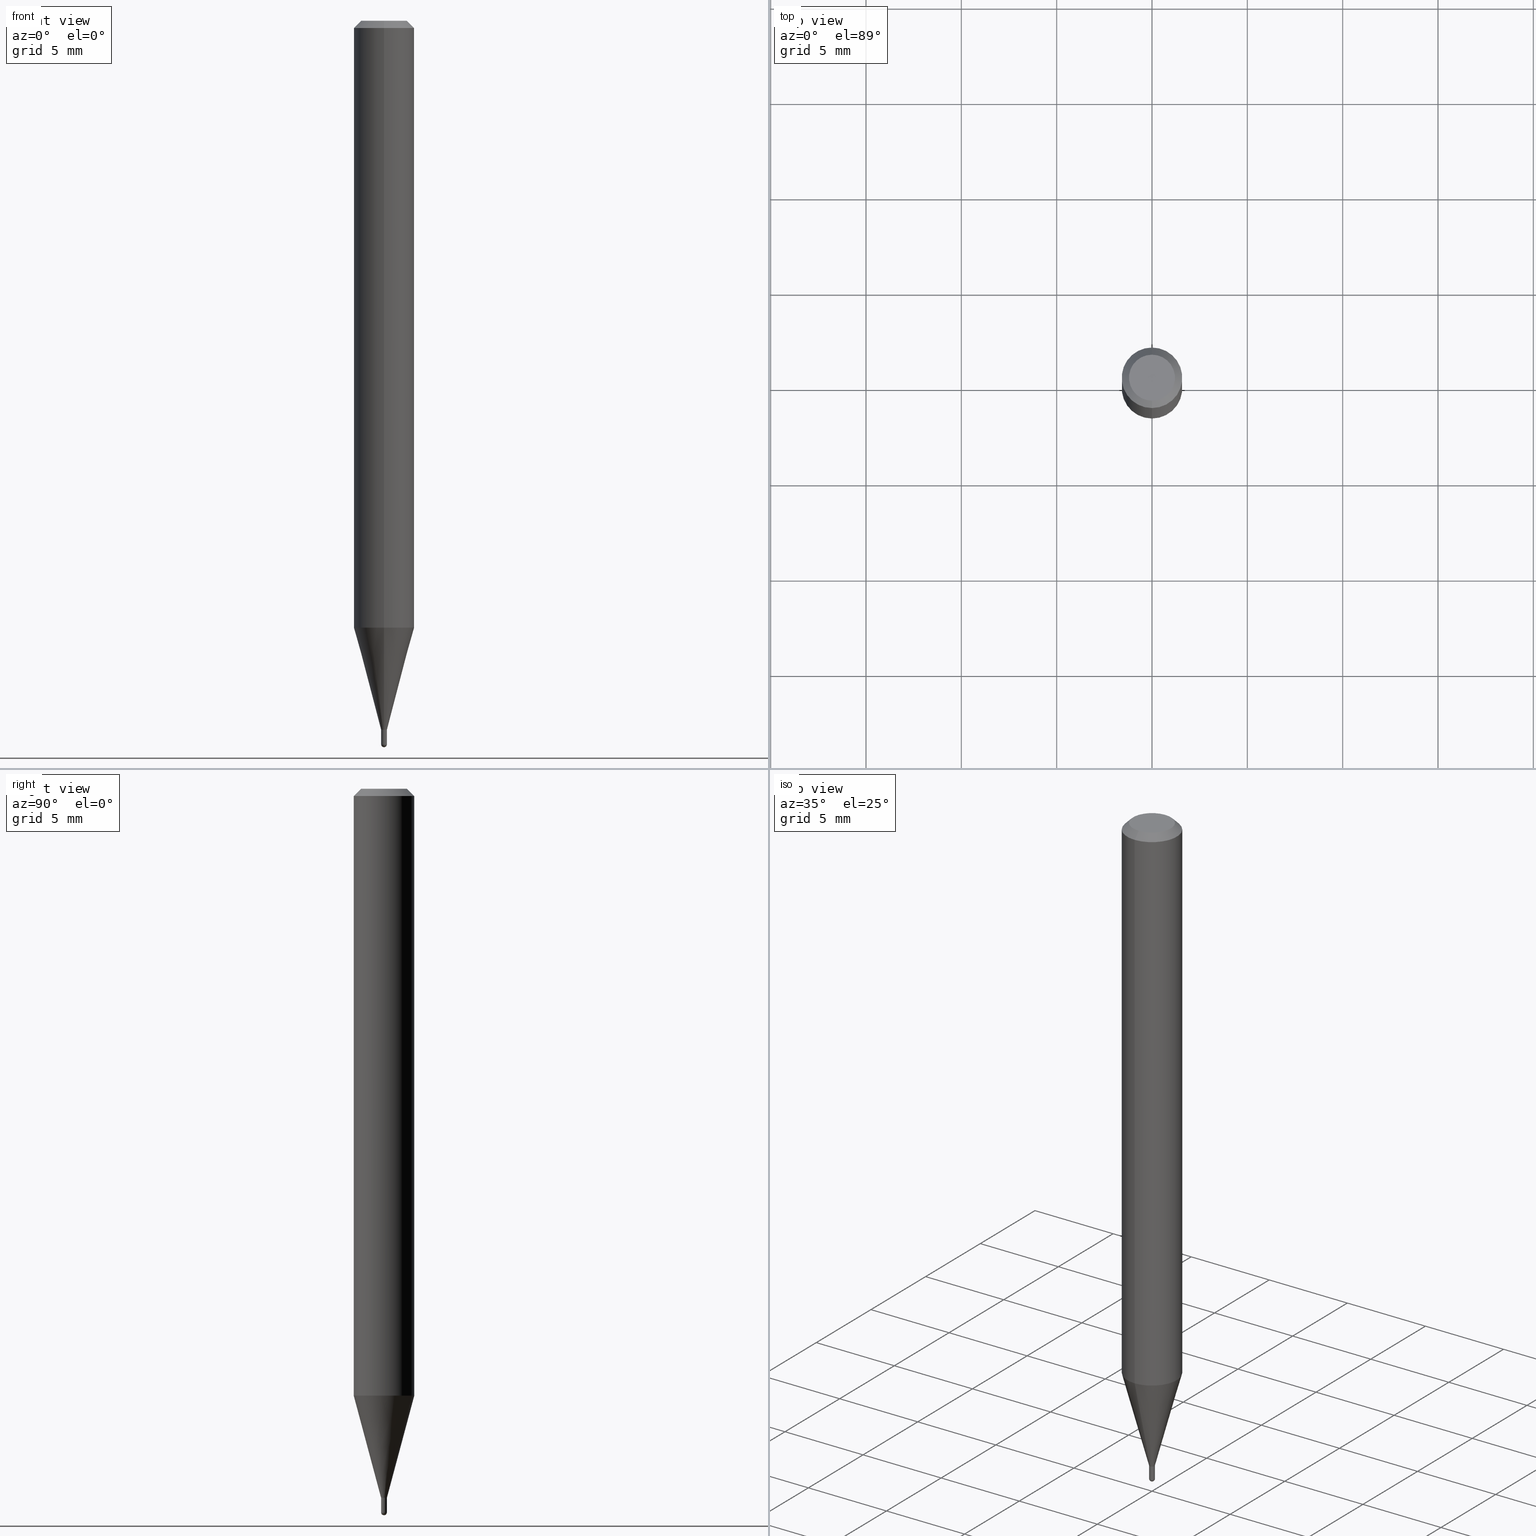
[diagram: canonical four-view strip — front | top / right | iso, engineering-drawing reading convention]
A machine part, canonical four-view strip (front | top / right | iso — engineering-drawing reading convention). The complete STEP part file that produces these views, byte-faithful:
ISO-10303-21;
HEADER;
FILE_DESCRIPTION (( 'STEP AP203' ),
    '1' );
FILE_NAME ('04390.STEP',
    '2024-03-08T19:06:11',
    ( '' ),
    ( '' ),
    'SwSTEP 2.0',
    'SolidWorks 2023',
    '' );
FILE_SCHEMA (( 'CONFIG_CONTROL_DESIGN' ));
ENDSEC;

DATA;
#1 = EDGE_CURVE ( 'NONE', #466, #507, #367, .T. ) ;
#2 = ORIENTED_EDGE ( 'NONE', *, *, #386, .T. ) ;
#3 = DIMENSIONAL_EXPONENTS ( 1.000000000000000000, 0.000000000000000000, 0.000000000000000000, 0.000000000000000000, 0.000000000000000000, 0.000000000000000000, 0.000000000000000000 ) ;
#4 = DIRECTION ( 'NONE',  ( -1.807323732225378654E-15, -0.2588190451025251249, 0.9659258262890670910 ) ) ;
#5 = ORIENTED_EDGE ( 'NONE', *, *, #52, .T. ) ;
#6 = AXIS2_PLACEMENT_3D ( 'NONE', #442, #257, #254 ) ;
#7 = PRODUCT_RELATED_PRODUCT_CATEGORY ( 'detail', '', ( #259 ) ) ;
#8 = LOCAL_TIME ( 14, 6, 11.00000000000000000, #455 ) ;
#9 = FACE_OUTER_BOUND ( 'NONE', #395, .T. ) ;
#10 = ORIENTED_EDGE ( 'NONE', *, *, #324, .F. ) ;
#11 = CARTESIAN_POINT ( 'NONE',  ( 3.668205305526113591E-31, -5.237219006317732571E-17, -0.01500000000000006710 ) ) ;
#12 = ORIENTED_EDGE ( 'NONE', *, *, #186, .T. ) ;
#13 = CARTESIAN_POINT ( 'NONE',  ( 3.653017296667086671E-29, -5.217007908311148520E-15, -1.494000000000000217 ) ) ;
#14 = ORIENTED_EDGE ( 'NONE', *, *, #151, .F. ) ;
#15 = VECTOR ( 'NONE', #226, 39.37007874015748143 ) ;
#16 = ADVANCED_FACE ( 'NONE', ( #127 ), #201, .T. ) ;
#17 = CIRCLE ( 'NONE', #124, 0.06250000000000000000 ) ;
#18 = DIRECTION ( 'NONE',  ( 1.000000000000000000, -6.982962677686331397E-15, 0.000000000000000000 ) ) ;
#19 = DIRECTION ( 'NONE',  ( 2.438088387897960049E-29, -3.491481338843145188E-15, -1.000000000000000000 ) ) ;
#20 = CARTESIAN_POINT ( 'NONE',  ( -4.364351673553611010E-16, -0.06250000000000438538, -1.253139129372365712 ) ) ;
#21 = SECURITY_CLASSIFICATION_LEVEL ( 'unclassified' ) ;
#22 = DIRECTION ( 'NONE',  ( -2.445470203684064494E-29, 3.491479337545139221E-15, 1.000000000000000000 ) ) ;
#23 = CARTESIAN_POINT ( 'NONE',  ( 0.000000000000000000, 0.000000000000000000, 0.000000000000000000 ) ) ;
#24 = DATE_AND_TIME ( #266, #300 ) ;
#25 = PLANE ( 'NONE',  #211 ) ;
#26 = CLOSED_SHELL ( 'NONE', ( #104, #321, #209, #427, #63 ) ) ;
#27 = CARTESIAN_POINT ( 'NONE',  ( 0.000000000000000000, 0.000000000000000000, 0.000000000000000000 ) ) ;
#28 = LOCAL_TIME ( 14, 6, 11.00000000000000000, #102 ) ;
#29 = CARTESIAN_POINT ( 'NONE',  ( 3.668205305526113591E-31, -5.237219006317732571E-17, -0.01500000000000006710 ) ) ;
#30 = EDGE_LOOP ( 'NONE', ( #474, #204, #200, #216 ) ) ;
#31 = DIRECTION ( 'NONE',  ( -6.982962677686266711E-15, -1.000000000000000000, 3.491479337545140404E-15 ) ) ;
#32 = VERTEX_POINT ( 'NONE', #93 ) ;
#33 = CC_DESIGN_PERSON_AND_ORGANIZATION_ASSIGNMENT ( #223, #423, ( #169 ) ) ;
#34 = LINE ( 'NONE', #120, #493 ) ;
#35 = VECTOR ( 'NONE', #112, 39.37007874015748143 ) ;
#36 = ORIENTED_EDGE ( 'NONE', *, *, #131, .F. ) ;
#37 = DIRECTION ( 'NONE',  ( -6.982962677686265922E-15, -1.000000000000000000, 3.483106191921935554E-15 ) ) ;
#38 = ORIENTED_EDGE ( 'NONE', *, *, #205, .T. ) ;
#39 = EDGE_LOOP ( 'NONE', ( #246, #240, #121, #213 ) ) ;
#40 =( LENGTH_UNIT ( ) NAMED_UNIT ( * ) SI_UNIT ( $, .METRE. ) );
#41 = CARTESIAN_POINT ( 'NONE',  ( 0.000000000000000000, 0.000000000000000000, 0.000000000000000000 ) ) ;
#42 = CIRCLE ( 'NONE', #506, 0.005499999999999999681 ) ;
#43 = AXIS2_PLACEMENT_3D ( 'NONE', #443, #368, #407 ) ;
#44 = AXIS2_PLACEMENT_3D ( 'NONE', #289, #199, #357 ) ;
#45 = FACE_OUTER_BOUND ( 'NONE', #30, .T. ) ;
#46 = VERTEX_POINT ( 'NONE', #416 ) ;
#47 = DIRECTION ( 'NONE',  ( -6.982962677686266711E-15, -1.000000000000000000, 0.000000000000000000 ) ) ;
#48 = VERTEX_POINT ( 'NONE', #90 ) ;
#49 = ADVANCED_FACE ( 'NONE', ( #405 ), #271, .T. ) ;
#50 = LENGTH_MEASURE_WITH_UNIT ( LENGTH_MEASURE( 0.02539999999999999897 ), #40 );
#51 = ORIENTED_EDGE ( 'NONE', *, *, #375, .T. ) ;
#52 = EDGE_CURVE ( 'NONE', #251, #466, #161, .T. ) ;
#53 = APPROVAL_DATE_TIME ( #264, #91 ) ;
#54 = VERTEX_POINT ( 'NONE', #181 ) ;
#55 = APPLICATION_CONTEXT ( 'configuration controlled 3d designs of mechanical parts and assemblies' ) ;
#56 = APPROVAL_STATUS ( 'not_yet_approved' ) ;
#57 = DIRECTION ( 'NONE',  ( 2.445470203684064774E-29, -3.491479337545139615E-15, -1.000000000000000000 ) ) ;
#58 = COORDINATED_UNIVERSAL_TIME_OFFSET ( 5, 0, .BEHIND. ) ;
#59 = FACE_OUTER_BOUND ( 'NONE', #486, .T. ) ;
#60 = VECTOR ( 'NONE', #490, 39.37007874015748143 ) ;
#61 = CC_DESIGN_APPROVAL ( #291, ( #169 ) ) ;
#62 = CARTESIAN_POINT ( 'NONE',  ( -4.189777606611706556E-17, -0.005999999999999923797, 2.094887602527057098E-17 ) ) ;
#63 = ADVANCED_FACE ( 'NONE', ( #139 ), #452, .T. ) ;
#64 = DATE_TIME_ROLE ( 'classification_date' ) ;
#65 = DIRECTION ( 'NONE',  ( 1.000000000000000000, -6.982962677686331397E-15, 0.000000000000000000 ) ) ;
#66 = CC_DESIGN_PERSON_AND_ORGANIZATION_ASSIGNMENT ( #492, #144, ( #360 ) ) ;
#67 = DIRECTION ( 'NONE',  ( -2.445468806185136877E-29, 3.491481338843145188E-15, 1.000000000000000000 ) ) ;
#68 = CIRCLE ( 'NONE', #446, 0.006000000000000000992 ) ;
#69 = CARTESIAN_POINT ( 'NONE',  ( 3.578945643091628947E-29, -5.109780010497312088E-15, -1.463500000000000023 ) ) ;
#70 = VECTOR ( 'NONE', #297, 39.37007874015748143 ) ;
#71 = EDGE_LOOP ( 'NONE', ( #285, #374, #207, #484 ) ) ;
#72 = FACE_OUTER_BOUND ( 'NONE', #482, .T. ) ;
#73 = ORIENTED_EDGE ( 'NONE', *, *, #128, .F. ) ;
#74 = CARTESIAN_POINT ( 'NONE',  ( 1.601791031799127782E-45, -2.286930457041170921E-31, -6.550032911405148752E-17 ) ) ;
#75 = ORIENTED_EDGE ( 'NONE', *, *, #409, .F. ) ;
#76 = CARTESIAN_POINT ( 'NONE',  ( 0.000000000000000000, 0.000000000000000000, 0.000000000000000000 ) ) ;
#77 = ORIENTED_EDGE ( 'NONE', *, *, #52, .F. ) ;
#78 = ORGANIZATION ( 'UNSPECIFIED', 'UNSPECIFIED', '' ) ;
#79 = CIRCLE ( 'NONE', #431, 0.006000000000000197016 ) ;
#80 = DIRECTION ( 'NONE',  ( -2.445470203684064774E-29, 3.491479337545139615E-15, 1.000000000000000000 ) ) ;
#81 = EDGE_LOOP ( 'NONE', ( #38, #238 ) ) ;
#82 = CARTESIAN_POINT ( 'NONE',  ( 4.263256414564233046E-17, 0.005999999999994755188, -1.494000000000000439 ) ) ;
#83 = VERTEX_POINT ( 'NONE', #388 ) ;
#84 = CARTESIAN_POINT ( 'NONE',  ( 3.580168378193471381E-29, -5.111525750166084832E-15, -1.463999999999999968 ) ) ;
#85 = ADVANCED_FACE ( 'NONE', ( #499 ), #153, .T. ) ;
#86 = EDGE_LOOP ( 'NONE', ( #283, #73 ) ) ;
#87 = CIRCLE ( 'NONE', #391, 0.006000000000000197016 ) ;
#88 = AXIS2_PLACEMENT_3D ( 'NONE', #11, #129, #208 ) ;
#89 = DIRECTION ( 'NONE',  ( -2.445470203684064774E-29, 3.491479337545139615E-15, 1.000000000000000000 ) ) ;
#90 = CARTESIAN_POINT ( 'NONE',  ( -4.189777606608316920E-17, -0.006000000000005308379, -1.463999999999999968 ) ) ;
#91 = APPROVAL ( #56, 'UNSPECIFIED' ) ;
#92 =( NAMED_UNIT ( * ) PLANE_ANGLE_UNIT ( ) SI_UNIT ( $, .RADIAN. ) );
#93 = CARTESIAN_POINT ( 'NONE',  ( -3.773273898774340269E-16, -0.04749999999999999362, 1.003449394193426408E-16 ) ) ;
#94 = APPLICATION_PROTOCOL_DEFINITION ( 'international standard', 'config_control_design', 1994, #55 ) ;
#95 = VERTEX_POINT ( 'NONE', #20 ) ;
#96 = CIRCLE ( 'NONE', #346, 0.006000000000000000125 ) ;
#97 = EDGE_CURVE ( 'NONE', #236, #251, #68, .T. ) ;
#98 = APPROVAL_STATUS ( 'not_yet_approved' ) ;
#99 = LINE ( 'NONE', #265, #398 ) ;
#100 = COORDINATED_UNIVERSAL_TIME_OFFSET ( 5, 0, .BEHIND. ) ;
#101 = DIRECTION ( 'NONE',  ( 1.000000000000000000, -6.982962677686332186E-15, 0.000000000000000000 ) ) ;
#102 = COORDINATED_UNIVERSAL_TIME_OFFSET ( 5, 0, .BEHIND. ) ;
#103 = CARTESIAN_POINT ( 'NONE',  ( 3.668205305526113591E-31, -5.237219006317732571E-17, -0.01500000000000006710 ) ) ;
#104 = ADVANCED_FACE ( 'NONE', ( #347 ), #379, .T. ) ;
#105 = CIRCLE ( 'NONE', #171, 0.006000000000000000992 ) ;
#106 = AXIS2_PLACEMENT_3D ( 'NONE', #449, #293, #261 ) ;
#107 = MANIFOLD_SOLID_BREP ( 'Body-Move/Copy2[2]', #134 ) ;
#108 = PERSON_AND_ORGANIZATION ( #256, #78 ) ;
#109 = CC_DESIGN_APPROVAL ( #91, ( #203 ) ) ;
#110 = CARTESIAN_POINT ( 'NONE',  ( 3.580168378193472502E-29, -5.111525750166085621E-15, -1.464000000000000190 ) ) ;
#111 = EDGE_CURVE ( 'NONE', #32, #46, #350, .T. ) ;
#112 = DIRECTION ( 'NONE',  ( -4.851104656540964275E-15, -0.7071067811865500152, -0.7071067811865450192 ) ) ;
#113 = CARTESIAN_POINT ( 'NONE',  ( 3.064514401950711564E-29, -4.375309377272921071E-15, -1.253139129372365934 ) ) ;
#114 = ORIENTED_EDGE ( 'NONE', *, *, #165, .F. ) ;
#115 = FACE_OUTER_BOUND ( 'NONE', #86, .T. ) ;
#116 = AXIS2_PLACEMENT_3D ( 'NONE', #434, #239, #319 ) ;
#117 = DIRECTION ( 'NONE',  ( -2.445468806185136877E-29, 3.491481338843145188E-15, 1.000000000000000000 ) ) ;
#118 = MANIFOLD_SOLID_BREP ( 'Body-Move/Copy2[1]', #26 ) ;
#119 = ORIENTED_EDGE ( 'NONE', *, *, #400, .F. ) ;
#120 = CARTESIAN_POINT ( 'NONE',  ( 4.364351673553919652E-16, 0.06249999999999995143, -0.01500000000000028394 ) ) ;
#121 = ORIENTED_EDGE ( 'NONE', *, *, #473, .F. ) ;
#122 = LINE ( 'NONE', #428, #485 ) ;
#123 = EDGE_LOOP ( 'NONE', ( #220, #402, #177, #323 ) ) ;
#124 = AXIS2_PLACEMENT_3D ( 'NONE', #292, #89, #410 ) ;
#125 = ADVANCED_FACE ( 'NONE', ( #462 ), #25, .F. ) ;
#126 = CARTESIAN_POINT ( 'NONE',  ( 3.840629472727447874E-16, 0.04749999999999999362, -2.313455976474456528E-16 ) ) ;
#127 = FACE_OUTER_BOUND ( 'NONE', #123, .T. ) ;
#128 = EDGE_CURVE ( 'NONE', #290, #54, #42, .T. ) ;
#129 = DIRECTION ( 'NONE',  ( 2.445470203684064774E-29, -3.491479337545139615E-15, -1.000000000000000000 ) ) ;
#130 = ORIENTED_EDGE ( 'NONE', *, *, #267, .T. ) ;
#131 = EDGE_CURVE ( 'NONE', #48, #511, #460, .T. ) ;
#132 = CARTESIAN_POINT ( 'NONE',  ( -4.189777606608316920E-17, -0.006000000000005308379, -1.463999999999999968 ) ) ;
#133 = CARTESIAN_POINT ( 'NONE',  ( 3.653530396440595201E-29, -5.216273120231661712E-15, -1.494000000000000439 ) ) ;
#134 = CLOSED_SHELL ( 'NONE', ( #343, #16, #85, #190, #49, #478, #241, #383, #125, #286, #255, #363 ) ) ;
#135 = CC_DESIGN_APPROVAL ( #459, ( #360 ) ) ;
#136 = DIRECTION ( 'NONE',  ( -6.982962677686266711E-15, -1.000000000000000000, 0.000000000000000000 ) ) ;
#137 = ORIENTED_EDGE ( 'NONE', *, *, #267, .F. ) ;
#138 = AXIS2_PLACEMENT_3D ( 'NONE', #29, #470, #37 ) ;
#139 = FACE_OUTER_BOUND ( 'NONE', #339, .T. ) ;
#140 = EDGE_CURVE ( 'NONE', #507, #83, #270, .T. ) ;
#141 = DIRECTION ( 'NONE',  ( -2.445468806185136597E-29, 3.491481338843145583E-15, 1.000000000000000000 ) ) ;
#142 = AXIS2_PLACEMENT_3D ( 'NONE', #147, #156, #309 ) ;
#143 = AXIS2_PLACEMENT_3D ( 'NONE', #76, #361, #159 ) ;
#144 = PERSON_AND_ORGANIZATION_ROLE ( 'creator' ) ;
#145 = ADVANCED_BREP_SHAPE_REPRESENTATION ( '04390', ( #118, #107, #315 ), #163 ) ;
#146 = CIRCLE ( 'NONE', #138, 0.06250000000000000000 ) ;
#147 = CARTESIAN_POINT ( 'NONE',  ( 1.601791031799127782E-45, -2.286930457041170921E-31, -6.550032911405148752E-17 ) ) ;
#148 = PERSON_AND_ORGANIZATION ( #256, #78 ) ;
#149 = DIRECTION ( 'NONE',  ( 1.000000000000000000, -6.982962677686331397E-15, 0.000000000000000000 ) ) ;
#150 = APPROVAL_DATE_TIME ( #24, #291 ) ;
#151 = EDGE_CURVE ( 'NONE', #83, #371, #399, .T. ) ;
#152 = DIRECTION ( 'NONE',  ( 6.982962677686265922E-15, 1.000000000000000000, -3.483106191921935554E-15 ) ) ;
#153 = CONICAL_SURFACE ( 'NONE', #429, 0.06250000000000000000, 0.7853981633974483900 ) ;
#154 = CALENDAR_DATE ( 2024, 8, 3 ) ;
#155 = LOCAL_TIME ( 14, 6, 11.00000000000000000, #496 ) ;
#156 = DIRECTION ( 'NONE',  ( -2.445470203684064774E-29, 3.491479337545139615E-15, 1.000000000000000000 ) ) ;
#157 = AXIS2_PLACEMENT_3D ( 'NONE', #505, #168, #278 ) ;
#158 = FACE_OUTER_BOUND ( 'NONE', #359, .T. ) ;
#159 = DIRECTION ( 'NONE',  ( -6.982962677686265922E-15, -1.000000000000000000, 3.491479337545139615E-15 ) ) ;
#160 = ORIENTED_EDGE ( 'NONE', *, *, #338, .T. ) ;
#161 = CIRCLE ( 'NONE', #468, 0.006000000000000000992 ) ;
#162 = DIRECTION ( 'NONE',  ( -6.982962677686265922E-15, -1.000000000000000000, 4.370956789862821150E-15 ) ) ;
#163 =( GEOMETRIC_REPRESENTATION_CONTEXT ( 3 ) GLOBAL_UNCERTAINTY_ASSIGNED_CONTEXT ( ( #312 ) ) GLOBAL_UNIT_ASSIGNED_CONTEXT ( ( #450, #92, #250 ) ) REPRESENTATION_CONTEXT ( 'NONE', 'WORKASPACE' ) );
#164 = ORIENTED_EDGE ( 'NONE', *, *, #318, .F. ) ;
#165 = EDGE_CURVE ( 'NONE', #371, #83, #96, .T. ) ;
#166 = CARTESIAN_POINT ( 'NONE',  ( 3.580168378193471381E-29, -5.111525750166084832E-15, -1.463999999999999968 ) ) ;
#167 = EDGE_LOOP ( 'NONE', ( #198, #305, #378, #137 ) ) ;
#168 = DIRECTION ( 'NONE',  ( -2.445470203684064774E-29, 3.491479337545139221E-15, 1.000000000000000000 ) ) ;
#169 = PRODUCT_DEFINITION ( 'UNKNOWN', '', #360, #454 ) ;
#170 = ORIENTED_EDGE ( 'NONE', *, *, #437, .T. ) ;
#171 = AXIS2_PLACEMENT_3D ( 'NONE', #457, #420, #65 ) ;
#172 = CARTESIAN_POINT ( 'NONE',  ( 4.440892098500625669E-16, 0.06250000000000000000, -2.182174585965712260E-16 ) ) ;
#173 = ORIENTED_EDGE ( 'NONE', *, *, #488, .F. ) ;
#174 = VECTOR ( 'NONE', #245, 39.37007874015748143 ) ;
#175 = ORIENTED_EDGE ( 'NONE', *, *, #303, .F. ) ;
#176 = DIRECTION ( 'NONE',  ( -2.445470203684064774E-29, 3.491479337545139615E-15, 1.000000000000000000 ) ) ;
#177 = ORIENTED_EDGE ( 'NONE', *, *, #375, .F. ) ;
#178 = DIRECTION ( 'NONE',  ( -6.982962677686265922E-15, -1.000000000000000000, 0.000000000000000000 ) ) ;
#179 = ORIENTED_EDGE ( 'NONE', *, *, #232, .T. ) ;
#180 = EDGE_CURVE ( 'NONE', #320, #279, #354, .T. ) ;
#181 = CARTESIAN_POINT ( 'NONE',  ( -3.840629472723865213E-17, -0.005500000000005111044, -1.464000000000000190 ) ) ;
#182 = PRODUCT_DEFINITION_SHAPE ( 'NONE', 'NONE',  #169 ) ;
#183 = CALENDAR_DATE ( 2024, 8, 3 ) ;
#184 = DIRECTION ( 'NONE',  ( -1.000000000000000000, 6.982962677686265922E-15, -4.876176775795935793E-29 ) ) ;
#185 = DIRECTION ( 'NONE',  ( -6.982962677686265922E-15, -1.000000000000000000, 0.000000000000000000 ) ) ;
#186 = EDGE_CURVE ( 'NONE', #507, #236, #105, .T. ) ;
#187 = AXIS2_PLACEMENT_3D ( 'NONE', #412, #176, #47 ) ;
#188 = PERSON_AND_ORGANIZATION_ROLE ( 'design_owner' ) ;
#189 = CYLINDRICAL_SURFACE ( 'NONE', #453, 0.06250000000000000000 ) ;
#190 = ADVANCED_FACE ( 'NONE', ( #59 ), #189, .T. ) ;
#191 = CALENDAR_DATE ( 2024, 8, 3 ) ;
#192 = CARTESIAN_POINT ( 'NONE',  ( 3.653530396440595201E-29, -5.216273120231661712E-15, -1.494000000000000439 ) ) ;
#193 = CARTESIAN_POINT ( 'NONE',  ( 0.000000000000000000, 0.000000000000000000, 0.000000000000000000 ) ) ;
#194 = AXIS2_PLACEMENT_3D ( 'NONE', #356, #358, #392 ) ;
#195 = DIRECTION ( 'NONE',  ( -2.445470203684064774E-29, 3.491479337545139615E-15, 1.000000000000000000 ) ) ;
#196 = CC_DESIGN_DATE_AND_TIME_ASSIGNMENT ( #225, #489, ( #169 ) ) ;
#197 = FACE_OUTER_BOUND ( 'NONE', #397, .T. ) ;
#198 = ORIENTED_EDGE ( 'NONE', *, *, #386, .F. ) ;
#199 = DIRECTION ( 'NONE',  ( -2.445470203684064774E-29, 3.491479337545139615E-15, 1.000000000000000000 ) ) ;
#200 = ORIENTED_EDGE ( 'NONE', *, *, #186, .F. ) ;
#201 = CONICAL_SURFACE ( 'NONE', #106, 0.005499999999999999681, 0.7853981633969275844 ) ;
#202 = DIRECTION ( 'NONE',  ( -6.982962677686265922E-15, -1.000000000000000000, 0.000000000000000000 ) ) ;
#203 = SECURITY_CLASSIFICATION ( '', '', #21 ) ;
#204 = ORIENTED_EDGE ( 'NONE', *, *, #324, .T. ) ;
#205 = EDGE_CURVE ( 'NONE', #444, #32, #390, .T. ) ;
#206 = CARTESIAN_POINT ( 'NONE',  ( -4.189777606608085808E-17, -0.006000000000005186948, -1.494000000000000439 ) ) ;
#207 = ORIENTED_EDGE ( 'NONE', *, *, #400, .T. ) ;
#208 = DIRECTION ( 'NONE',  ( 6.982962677686265922E-15, 1.000000000000000000, -3.483106191921935554E-15 ) ) ;
#209 = ADVANCED_FACE ( 'NONE', ( #274 ), #426, .F. ) ;
#210 = VERTEX_POINT ( 'NONE', #345 ) ;
#211 = AXIS2_PLACEMENT_3D ( 'NONE', #351, #497, #464 ) ;
#212 = DIRECTION ( 'NONE',  ( -2.445470203684064774E-29, 3.491479337545139615E-15, 1.000000000000000000 ) ) ;
#213 = ORIENTED_EDGE ( 'NONE', *, *, #437, .F. ) ;
#214 = APPROVAL_PERSON_ORGANIZATION ( #108, #291, #316 ) ;
#215 = LINE ( 'NONE', #448, #262 ) ;
#216 = ORIENTED_EDGE ( 'NONE', *, *, #1, .F. ) ;
#217 = DIRECTION ( 'NONE',  ( -6.982962677686266711E-15, -1.000000000000000000, 0.000000000000000000 ) ) ;
#218 = ORIENTED_EDGE ( 'NONE', *, *, #389, .T. ) ;
#219 = CARTESIAN_POINT ( 'NONE',  ( 3.580168378193471381E-29, -5.111525750166084832E-15, -1.463999999999999968 ) ) ;
#220 = ORIENTED_EDGE ( 'NONE', *, *, #263, .T. ) ;
#221 = APPROVAL_PERSON_ORGANIZATION ( #344, #459, #380 ) ;
#222 = ORIENTED_EDGE ( 'NONE', *, *, #488, .T. ) ;
#223 = PERSON_AND_ORGANIZATION ( #256, #78 ) ;
#224 = CARTESIAN_POINT ( 'NONE',  ( -3.840629472723865213E-17, -0.005500000000005111044, -1.464000000000000190 ) ) ;
#225 = DATE_AND_TIME ( #183, #438 ) ;
#226 = DIRECTION ( 'NONE',  ( -4.937700262161976356E-15, -0.7071067811861768693, 0.7071067811869181652 ) ) ;
#227 = EDGE_CURVE ( 'NONE', #95, #46, #99, .T. ) ;
#228 = CIRCLE ( 'NONE', #272, 0.005999999999999650578 ) ;
#229 = DIRECTION ( 'NONE',  ( 1.000000000000000000, -6.982962677686332186E-15, 0.000000000000000000 ) ) ;
#230 = PERSON_AND_ORGANIZATION ( #256, #78 ) ;
#231 = CARTESIAN_POINT ( 'NONE',  ( 3.580166332255040005E-29, -5.111528680066365187E-15, -1.463999999999999968 ) ) ;
#232 = EDGE_CURVE ( 'NONE', #54, #511, #418, .T. ) ;
#233 = CARTESIAN_POINT ( 'NONE',  ( 3.580166332255040005E-29, -5.111528680066365187E-15, -1.463999999999999968 ) ) ;
#234 = CIRCLE ( 'NONE', #509, 0.005999999999999941144 ) ;
#235 = DIRECTION ( 'NONE',  ( -6.982962677686265922E-15, -1.000000000000000000, 3.491479337545139615E-15 ) ) ;
#236 = VERTEX_POINT ( 'NONE', #206 ) ;
#237 = CYLINDRICAL_SURFACE ( 'NONE', #501, 0.005999999999999923797 ) ;
#238 = ORIENTED_EDGE ( 'NONE', *, *, #298, .T. ) ;
#239 = DIRECTION ( 'NONE',  ( -1.000000000000000000, 6.982962677686265922E-15, -4.883557194083112340E-29 ) ) ;
#240 = ORIENTED_EDGE ( 'NONE', *, *, #180, .T. ) ;
#241 = ADVANCED_FACE ( 'NONE', ( #476 ), #327, .T. ) ;
#242 = AXIS2_PLACEMENT_3D ( 'NONE', #193, #314, #422 ) ;
#243 = CARTESIAN_POINT ( 'NONE',  ( 0.006000000000000000125, -5.153426456132483639E-15, -1.463999999999999968 ) ) ;
#244 = CONICAL_SURFACE ( 'NONE', #88, 0.06250000000000000000, 0.7853981633974483900 ) ;
#245 = DIRECTION ( 'NONE',  ( -2.445470203684064494E-29, 3.491479337545139221E-15, 1.000000000000000000 ) ) ;
#246 = ORIENTED_EDGE ( 'NONE', *, *, #258, .T. ) ;
#247 = DIRECTION ( 'NONE',  ( 1.000000000000000000, -7.105427357601001070E-15, 4.926315508542082329E-29 ) ) ;
#248 = ORIENTED_EDGE ( 'NONE', *, *, #258, .F. ) ;
#249 = AXIS2_PLACEMENT_3D ( 'NONE', #133, #299, #481 ) ;
#250 =( NAMED_UNIT ( * ) SI_UNIT ( $, .STERADIAN. ) SOLID_ANGLE_UNIT ( ) );
#251 = VERTEX_POINT ( 'NONE', #465 ) ;
#252 = CONICAL_SURFACE ( 'NONE', #447, 0.006000000000000197016, 0.2617993877991574569 ) ;
#253 = CARTESIAN_POINT ( 'NONE',  ( 4.263256414560546353E-17, 0.005999999999999923797, -2.094887602527057098E-17 ) ) ;
#254 = DIRECTION ( 'NONE',  ( -6.982962677686266711E-15, -1.000000000000000000, 0.000000000000000000 ) ) ;
#255 = ADVANCED_FACE ( 'NONE', ( #284 ), #287, .T. ) ;
#256 = PERSON ( 'UNSPECIFIED', 'UNSPECIFIED', 'UNSPECIFIED', ('UNSPECIFIED'), ('UNSPECIFIED'), ('UNSPECIFIED') ) ;
#257 = DIRECTION ( 'NONE',  ( -2.445470203684064774E-29, 3.491479337545139615E-15, 1.000000000000000000 ) ) ;
#258 = EDGE_CURVE ( 'NONE', #48, #320, #87, .T. ) ;
#259 = PRODUCT ( '04390', '04390', '', ( #352 ) ) ;
#260 = PERSON_AND_ORGANIZATION ( #256, #78 ) ;
#261 = DIRECTION ( 'NONE',  ( -6.982962677686265922E-15, -1.000000000000000000, 0.000000000000000000 ) ) ;
#262 = VECTOR ( 'NONE', #441, 39.37007874015748143 ) ;
#263 = EDGE_CURVE ( 'NONE', #54, #290, #508, .T. ) ;
#264 = DATE_AND_TIME ( #191, #8 ) ;
#265 = CARTESIAN_POINT ( 'NONE',  ( -4.364351673553916201E-16, -0.06250000000000000000, 2.182174585965712260E-16 ) ) ;
#266 = CALENDAR_DATE ( 2024, 8, 3 ) ;
#267 = EDGE_CURVE ( 'NONE', #326, #46, #146, .T. ) ;
#268 = DIRECTION ( 'NONE',  ( -2.445468806185136597E-29, 3.491481338843145583E-15, 1.000000000000000000 ) ) ;
#269 = CALENDAR_DATE ( 2024, 8, 3 ) ;
#270 = LINE ( 'NONE', #307, #355 ) ;
#271 = CONICAL_SURFACE ( 'NONE', #6, 0.006000000000000197016, 0.2617993877991574569 ) ;
#272 = AXIS2_PLACEMENT_3D ( 'NONE', #69, #322, #394 ) ;
#273 = DIRECTION ( 'NONE',  ( 1.000000000000000000, -6.982962677686266711E-15, 4.876176775795935232E-29 ) ) ;
#274 = FACE_OUTER_BOUND ( 'NONE', #334, .T. ) ;
#275 = DIRECTION ( 'NONE',  ( -2.445470203684064774E-29, 3.491479337545139615E-15, 1.000000000000000000 ) ) ;
#276 = ORIENTED_EDGE ( 'NONE', *, *, #205, .F. ) ;
#277 = VECTOR ( 'NONE', #4, 39.37007874015748854 ) ;
#278 = DIRECTION ( 'NONE',  ( -6.982962677686265922E-15, -1.000000000000000000, 3.491479337545139221E-15 ) ) ;
#279 = VERTEX_POINT ( 'NONE', #510 ) ;
#280 = CIRCLE ( 'NONE', #445, 0.04749999999999999362 ) ;
#281 = SPHERICAL_SURFACE ( 'NONE', #348, 0.005999999999999941144 ) ;
#282 = CC_DESIGN_DATE_AND_TIME_ASSIGNMENT ( #419, #64, ( #203 ) ) ;
#283 = ORIENTED_EDGE ( 'NONE', *, *, #263, .F. ) ;
#284 = FACE_OUTER_BOUND ( 'NONE', #336, .T. ) ;
#285 = ORIENTED_EDGE ( 'NONE', *, *, #298, .F. ) ;
#286 = ADVANCED_FACE ( 'NONE', ( #115 ), #435, .F. ) ;
#287 = CONICAL_SURFACE ( 'NONE', #194, 0.005499999999999999681, 0.7853981633969275844 ) ;
#288 = AXIS2_PLACEMENT_3D ( 'NONE', #113, #275, #162 ) ;
#289 = CARTESIAN_POINT ( 'NONE',  ( 3.580168378193472502E-29, -5.111525750166085621E-15, -1.464000000000000190 ) ) ;
#290 = VERTEX_POINT ( 'NONE', #439 ) ;
#291 = APPROVAL ( #98, 'UNSPECIFIED' ) ;
#292 = CARTESIAN_POINT ( 'NONE',  ( 3.064514401950711564E-29, -4.375309377272921071E-15, -1.253139129372365934 ) ) ;
#293 = DIRECTION ( 'NONE',  ( -2.445470203684064774E-29, 3.491479337545139615E-15, 1.000000000000000000 ) ) ;
#294 = LINE ( 'NONE', #172, #174 ) ;
#295 = ORIENTED_EDGE ( 'NONE', *, *, #97, .T. ) ;
#296 = AXIS2_PLACEMENT_3D ( 'NONE', #41, #369, #273 ) ;
#297 = DIRECTION ( 'NONE',  ( -2.445470203684064494E-29, 3.491479337545139221E-15, 1.000000000000000000 ) ) ;
#298 = EDGE_CURVE ( 'NONE', #32, #444, #280, .T. ) ;
#299 = DIRECTION ( 'NONE',  ( -2.445468806185136597E-29, 3.491481338843145583E-15, 1.000000000000000000 ) ) ;
#300 = LOCAL_TIME ( 14, 6, 11.00000000000000000, #100 ) ;
#301 = CARTESIAN_POINT ( 'NONE',  ( -4.189777606607950223E-17, -0.006000000000004779288, -1.463500000000000023 ) ) ;
#302 = ORIENTED_EDGE ( 'NONE', *, *, #97, .F. ) ;
#303 = EDGE_CURVE ( 'NONE', #279, #95, #463, .T. ) ;
#304 = CARTESIAN_POINT ( 'NONE',  ( 4.263256414563917501E-17, 0.005999999999994521868, -1.463500000000000023 ) ) ;
#305 = ORIENTED_EDGE ( 'NONE', *, *, #303, .T. ) ;
#306 = PERSON_AND_ORGANIZATION_ROLE ( 'design_supplier' ) ;
#307 = CARTESIAN_POINT ( 'NONE',  ( -0.006000000000000000992, 4.263256414560601820E-17, -2.951361054152944376E-31 ) ) ;
#308 = PERSON_AND_ORGANIZATION ( #256, #78 ) ;
#309 = DIRECTION ( 'NONE',  ( -6.982962677686266711E-15, -1.000000000000000000, 3.491479337545140404E-15 ) ) ;
#310 = APPLICATION_PROTOCOL_DEFINITION ( 'international standard', 'config_control_design', 1994, #475 ) ;
#311 = DIRECTION ( 'NONE',  ( -2.445470203684064774E-29, 3.491479337545139615E-15, 1.000000000000000000 ) ) ;
#312 = UNCERTAINTY_MEASURE_WITH_UNIT (LENGTH_MEASURE( 1.000000000000000082E-05 ), #450, 'distance_accuracy_value', 'NONE');
#313 = DATE_AND_TIME ( #154, #28 ) ;
#314 = DIRECTION ( 'NONE',  ( -2.445468806185136597E-29, 3.491481338843145583E-15, 1.000000000000000000 ) ) ;
#315 = AXIS2_PLACEMENT_3D ( 'NONE', #498, #387, #415 ) ;
#316 = APPROVAL_ROLE ( '' ) ;
#317 = DIRECTION ( 'NONE',  ( -2.445470203684064774E-29, 3.491479337545139615E-15, 1.000000000000000000 ) ) ;
#318 = EDGE_CURVE ( 'NONE', #251, #371, #122, .T. ) ;
#319 = DIRECTION ( 'NONE',  ( -6.982962677686265922E-15, -1.000000000000000000, 0.000000000000000000 ) ) ;
#320 = VERTEX_POINT ( 'NONE', #432 ) ;
#321 = ADVANCED_FACE ( 'NONE', ( #72 ), #281, .T. ) ;
#322 = DIRECTION ( 'NONE',  ( -2.445470203684064774E-29, 3.491479337545139615E-15, 1.000000000000000000 ) ) ;
#323 = ORIENTED_EDGE ( 'NONE', *, *, #232, .F. ) ;
#324 = EDGE_CURVE ( 'NONE', #210, #236, #479, .T. ) ;
#325 = DIRECTION ( 'NONE',  ( 1.000000000000000000, -6.982962677686265922E-15, 4.883557194083112901E-29 ) ) ;
#326 = VERTEX_POINT ( 'NONE', #396 ) ;
#327 = CYLINDRICAL_SURFACE ( 'NONE', #491, 0.06250000000000000000 ) ;
#328 = ORIENTED_EDGE ( 'NONE', *, *, #128, .T. ) ;
#329 = CARTESIAN_POINT ( 'NONE',  ( 3.653017296667086671E-29, -5.217007908311148520E-15, -1.494000000000000217 ) ) ;
#330 = ORIENTED_EDGE ( 'NONE', *, *, #111, .F. ) ;
#331 = AXIS2_PLACEMENT_3D ( 'NONE', #458, #19, #184 ) ;
#332 = CC_DESIGN_SECURITY_CLASSIFICATION ( #203, ( #360 ) ) ;
#333 = LINE ( 'NONE', #132, #277 ) ;
#334 = EDGE_LOOP ( 'NONE', ( #487, #408 ) ) ;
#335 = ORIENTED_EDGE ( 'NONE', *, *, #425, .T. ) ;
#336 = EDGE_LOOP ( 'NONE', ( #75, #328, #179, #436 ) ) ;
#337 = VECTOR ( 'NONE', #424, 39.37007874015748143 ) ;
#338 = EDGE_CURVE ( 'NONE', #444, #326, #34, .T. ) ;
#339 = EDGE_LOOP ( 'NONE', ( #362, #12, #295, #504, #14 ) ) ;
#340 = APPROVAL_PERSON_ORGANIZATION ( #148, #91, #461 ) ;
#341 = DIRECTION ( 'NONE',  ( 7.105427357601001070E-15, 1.000000000000000000, 0.000000000000000000 ) ) ;
#342 = ORIENTED_EDGE ( 'NONE', *, *, #140, .T. ) ;
#343 = ADVANCED_FACE ( 'NONE', ( #197 ), #237, .F. ) ;
#344 = PERSON_AND_ORGANIZATION ( #256, #78 ) ;
#345 = CARTESIAN_POINT ( 'NONE',  ( 3.667433559617443502E-29, -5.238324190383951544E-15, -1.500000000000000222 ) ) ;
#346 = AXIS2_PLACEMENT_3D ( 'NONE', #231, #494, #101 ) ;
#347 = FACE_OUTER_BOUND ( 'NONE', #469, .T. ) ;
#348 = AXIS2_PLACEMENT_3D ( 'NONE', #329, #325, #202 ) ;
#349 = APPROVAL_STATUS ( 'not_yet_approved' ) ;
#350 = LINE ( 'NONE', #385, #35 ) ;
#351 = CARTESIAN_POINT ( 'NONE',  ( 3.316907271900976096E-16, 0.04749999999999999362, -1.985954330904198597E-16 ) ) ;
#352 = MECHANICAL_CONTEXT ( 'NONE', #55, 'mechanical' ) ;
#353 = CC_DESIGN_PERSON_AND_ORGANIZATION_ASSIGNMENT ( #230, #188, ( #259 ) ) ;
#354 = LINE ( 'NONE', #381, #337 ) ;
#355 = VECTOR ( 'NONE', #67, 39.37007874015748143 ) ;
#356 = CARTESIAN_POINT ( 'NONE',  ( 3.580168378193472502E-29, -5.111525750166085621E-15, -1.464000000000000190 ) ) ;
#357 = DIRECTION ( 'NONE',  ( -6.982962677686265922E-15, -1.000000000000000000, 0.000000000000000000 ) ) ;
#358 = DIRECTION ( 'NONE',  ( -2.445470203684064774E-29, 3.491479337545139615E-15, 1.000000000000000000 ) ) ;
#359 = EDGE_LOOP ( 'NONE', ( #451, #248, #440, #51 ) ) ;
#360 = PRODUCT_DEFINITION_FORMATION_WITH_SPECIFIED_SOURCE ( 'ANY', '', #259, .NOT_KNOWN. ) ;
#361 = DIRECTION ( 'NONE',  ( -2.445470203684064774E-29, 3.491479337545139615E-15, 1.000000000000000000 ) ) ;
#362 = ORIENTED_EDGE ( 'NONE', *, *, #140, .F. ) ;
#363 = ADVANCED_FACE ( 'NONE', ( #158 ), #503, .F. ) ;
#364 = DIRECTION ( 'NONE',  ( -6.982962677686265922E-15, -1.000000000000000000, 3.491479337545139615E-15 ) ) ;
#365 = SPHERICAL_SURFACE ( 'NONE', #456, 0.005999999999999941144 ) ;
#366 = CC_DESIGN_PERSON_AND_ORGANIZATION_ASSIGNMENT ( #260, #417, ( #203 ) ) ;
#367 = CIRCLE ( 'NONE', #249, 0.006000000000000000992 ) ;
#368 = DIRECTION ( 'NONE',  ( -2.445470203684064774E-29, 3.491479337545139615E-15, 1.000000000000000000 ) ) ;
#369 = DIRECTION ( 'NONE',  ( -2.445468806185136597E-29, 3.491481338843145583E-15, 1.000000000000000000 ) ) ;
#370 = CARTESIAN_POINT ( 'NONE',  ( 3.653017296667086671E-29, -5.217007908311148520E-15, -1.494000000000000217 ) ) ;
#371 = VERTEX_POINT ( 'NONE', #243 ) ;
#372 = CC_DESIGN_PERSON_AND_ORGANIZATION_ASSIGNMENT ( #308, #306, ( #360 ) ) ;
#373 = DIRECTION ( 'NONE',  ( -2.445470203684064774E-29, 3.491479337545139615E-15, 1.000000000000000000 ) ) ;
#374 = ORIENTED_EDGE ( 'NONE', *, *, #111, .T. ) ;
#375 = EDGE_CURVE ( 'NONE', #511, #471, #228, .T. ) ;
#376 = FACE_OUTER_BOUND ( 'NONE', #477, .T. ) ;
#377 = DIRECTION ( 'NONE',  ( -2.445468806185136597E-29, 3.491481338843145583E-15, 1.000000000000000000 ) ) ;
#378 = ORIENTED_EDGE ( 'NONE', *, *, #227, .T. ) ;
#379 = CYLINDRICAL_SURFACE ( 'NONE', #242, 0.006000000000000000992 ) ;
#380 = APPROVAL_ROLE ( '' ) ;
#381 = CARTESIAN_POINT ( 'NONE',  ( 4.263256414564321176E-17, 0.005999999999995085653, -1.463999999999999968 ) ) ;
#382 = CIRCLE ( 'NONE', #43, 0.06250000000000000000 ) ;
#383 = ADVANCED_FACE ( 'NONE', ( #9 ), #244, .T. ) ;
#384 = APPROVAL_DATE_TIME ( #313, #459 ) ;
#385 = CARTESIAN_POINT ( 'NONE',  ( -4.287811248607203282E-16, -0.06250000000000005551, -0.01499999999999984852 ) ) ;
#386 = EDGE_CURVE ( 'NONE', #279, #326, #294, .T. ) ;
#387 = DIRECTION ( 'NONE',  ( 0.000000000000000000, 0.000000000000000000, 1.000000000000000000 ) ) ;
#388 = CARTESIAN_POINT ( 'NONE',  ( -0.006000000000000000125, -5.121268336003407400E-15, -1.463999999999999968 ) ) ;
#389 = EDGE_CURVE ( 'NONE', #471, #511, #406, .T. ) ;
#390 = CIRCLE ( 'NONE', #142, 0.04749999999999999362 ) ;
#391 = AXIS2_PLACEMENT_3D ( 'NONE', #166, #401, #467 ) ;
#392 = DIRECTION ( 'NONE',  ( -6.982962677686265922E-15, -1.000000000000000000, 0.000000000000000000 ) ) ;
#393 = ORIENTED_EDGE ( 'NONE', *, *, #180, .F. ) ;
#394 = DIRECTION ( 'NONE',  ( -6.982962677686266711E-15, -1.000000000000000000, 0.000000000000000000 ) ) ;
#395 = EDGE_LOOP ( 'NONE', ( #330, #276, #160, #130 ) ) ;
#396 = CARTESIAN_POINT ( 'NONE',  ( 4.440892098500933817E-16, 0.06249999999999995143, -0.01500000000000028394 ) ) ;
#397 = EDGE_LOOP ( 'NONE', ( #173, #335, #218, #36 ) ) ;
#398 = VECTOR ( 'NONE', #22, 39.37007874015748143 ) ;
#399 = CIRCLE ( 'NONE', #414, 0.006000000000000000125 ) ;
#400 = EDGE_CURVE ( 'NONE', #46, #326, #382, .T. ) ;
#401 = DIRECTION ( 'NONE',  ( -2.445470203684064774E-29, 3.491479337545139615E-15, 1.000000000000000000 ) ) ;
#402 = ORIENTED_EDGE ( 'NONE', *, *, #409, .T. ) ;
#403 = ORIENTED_EDGE ( 'NONE', *, *, #227, .F. ) ;
#404 = CARTESIAN_POINT ( 'NONE',  ( -0.006000000000000000992, -5.121268336003407400E-15, -1.494000000000000439 ) ) ;
#405 = FACE_OUTER_BOUND ( 'NONE', #39, .T. ) ;
#406 = CIRCLE ( 'NONE', #187, 0.005999999999999650578 ) ;
#407 = DIRECTION ( 'NONE',  ( -6.982962677686265922E-15, -1.000000000000000000, 3.483106191921935554E-15 ) ) ;
#408 = ORIENTED_EDGE ( 'NONE', *, *, #151, .T. ) ;
#409 = EDGE_CURVE ( 'NONE', #290, #471, #215, .T. ) ;
#410 = DIRECTION ( 'NONE',  ( -6.982962677686265922E-15, -1.000000000000000000, 4.370956789862821150E-15 ) ) ;
#411 = ORIENTED_EDGE ( 'NONE', *, *, #495, .T. ) ;
#412 = CARTESIAN_POINT ( 'NONE',  ( 3.578945643091628947E-29, -5.109780010497312088E-15, -1.463500000000000023 ) ) ;
#413 = CARTESIAN_POINT ( 'NONE',  ( 3.653530396440595201E-29, -5.216273120231661712E-15, -1.494000000000000439 ) ) ;
#414 = AXIS2_PLACEMENT_3D ( 'NONE', #233, #268, #229 ) ;
#415 = DIRECTION ( 'NONE',  ( 1.000000000000000000, 0.000000000000000000, 0.000000000000000000 ) ) ;
#416 = CARTESIAN_POINT ( 'NONE',  ( -4.364351673553912750E-16, -0.06250000000000005551, -0.01499999999999984852 ) ) ;
#417 = PERSON_AND_ORGANIZATION_ROLE ( 'classification_officer' ) ;
#418 = LINE ( 'NONE', #224, #15 ) ;
#419 = DATE_AND_TIME ( #269, #155 ) ;
#420 = DIRECTION ( 'NONE',  ( -2.445468806185136597E-29, 3.491481338843145583E-15, 1.000000000000000000 ) ) ;
#421 = SHAPE_DEFINITION_REPRESENTATION ( #182, #145 ) ;
#422 = DIRECTION ( 'NONE',  ( 1.000000000000000000, -6.982962677686266711E-15, 4.876176775795935232E-29 ) ) ;
#423 = PERSON_AND_ORGANIZATION_ROLE ( 'creator' ) ;
#424 = DIRECTION ( 'NONE',  ( 1.839019923739649619E-15, 0.2588190451025318972, 0.9659258262890653146 ) ) ;
#425 = EDGE_CURVE ( 'NONE', #320, #471, #480, .T. ) ;
#426 = PLANE ( 'NONE',  #331 ) ;
#427 = ADVANCED_FACE ( 'NONE', ( #45 ), #365, .T. ) ;
#428 = CARTESIAN_POINT ( 'NONE',  ( 0.006000000000000000992, -4.189777606611760791E-17, 2.925706065477561668E-31 ) ) ;
#429 = AXIS2_PLACEMENT_3D ( 'NONE', #103, #57, #152 ) ;
#430 = ORIENTED_EDGE ( 'NONE', *, *, #1, .T. ) ;
#431 = AXIS2_PLACEMENT_3D ( 'NONE', #84, #373, #136 ) ;
#432 = CARTESIAN_POINT ( 'NONE',  ( 2.433608869978683522E-16, 0.005999999999995085653, -1.463999999999999968 ) ) ;
#433 = ORIENTED_EDGE ( 'NONE', *, *, #473, .T. ) ;
#434 = CARTESIAN_POINT ( 'NONE',  ( 3.653017296667086671E-29, -5.217007908311148520E-15, -1.494000000000000217 ) ) ;
#435 = PLANE ( 'NONE',  #157 ) ;
#436 = ORIENTED_EDGE ( 'NONE', *, *, #389, .F. ) ;
#437 = EDGE_CURVE ( 'NONE', #48, #95, #333, .T. ) ;
#438 = LOCAL_TIME ( 14, 6, 11.00000000000000000, #58 ) ;
#439 = CARTESIAN_POINT ( 'NONE',  ( 4.085620730624024185E-17, 0.005499999999994887451, -1.464000000000000190 ) ) ;
#440 = ORIENTED_EDGE ( 'NONE', *, *, #131, .T. ) ;
#441 = DIRECTION ( 'NONE',  ( 5.024295867785445738E-15, 0.7071067811861817543, 0.7071067811869132802 ) ) ;
#442 = CARTESIAN_POINT ( 'NONE',  ( 3.580168378193471381E-29, -5.111525750166084832E-15, -1.463999999999999968 ) ) ;
#443 = CARTESIAN_POINT ( 'NONE',  ( 3.668205305526113591E-31, -5.237219006317732571E-17, -0.01500000000000006710 ) ) ;
#444 = VERTEX_POINT ( 'NONE', #126 ) ;
#445 = AXIS2_PLACEMENT_3D ( 'NONE', #74, #80, #31 ) ;
#446 = AXIS2_PLACEMENT_3D ( 'NONE', #192, #141, #149 ) ;
#447 = AXIS2_PLACEMENT_3D ( 'NONE', #219, #212, #217 ) ;
#448 = CARTESIAN_POINT ( 'NONE',  ( 3.907985046684130252E-17, 0.005499999999994887451, -1.464000000000000190 ) ) ;
#449 = CARTESIAN_POINT ( 'NONE',  ( 3.580168378193472502E-29, -5.111525750166085621E-15, -1.464000000000000190 ) ) ;
#450 =( CONVERSION_BASED_UNIT ( 'INCH', #50 ) LENGTH_UNIT ( ) NAMED_UNIT ( #3 ) );
#451 = ORIENTED_EDGE ( 'NONE', *, *, #425, .F. ) ;
#452 = CYLINDRICAL_SURFACE ( 'NONE', #296, 0.006000000000000000992 ) ;
#453 = AXIS2_PLACEMENT_3D ( 'NONE', #23, #317, #500 ) ;
#454 = DESIGN_CONTEXT ( 'detailed design', #475, 'design' ) ;
#455 = COORDINATED_UNIVERSAL_TIME_OFFSET ( 5, 0, .BEHIND. ) ;
#456 = AXIS2_PLACEMENT_3D ( 'NONE', #370, #483, #178 ) ;
#457 = CARTESIAN_POINT ( 'NONE',  ( 3.653530396440595201E-29, -5.216273120231661712E-15, -1.494000000000000439 ) ) ;
#458 = CARTESIAN_POINT ( 'NONE',  ( 4.189777606615339631E-17, 0.005999999999994887895, -1.463999999999999968 ) ) ;
#459 = APPROVAL ( #349, 'UNSPECIFIED' ) ;
#460 = LINE ( 'NONE', #62, #60 ) ;
#461 = APPROVAL_ROLE ( '' ) ;
#462 = FACE_OUTER_BOUND ( 'NONE', #81, .T. ) ;
#463 = CIRCLE ( 'NONE', #288, 0.06250000000000000000 ) ;
#464 = DIRECTION ( 'NONE',  ( 6.982962677686265922E-15, 1.000000000000000000, -3.491479337545139221E-15 ) ) ;
#465 = CARTESIAN_POINT ( 'NONE',  ( 0.006000000000000000992, -5.205798676215131901E-15, -1.494000000000000439 ) ) ;
#466 = VERTEX_POINT ( 'NONE', #82 ) ;
#467 = DIRECTION ( 'NONE',  ( -6.982962677686266711E-15, -1.000000000000000000, 0.000000000000000000 ) ) ;
#468 = AXIS2_PLACEMENT_3D ( 'NONE', #413, #377, #18 ) ;
#469 = EDGE_LOOP ( 'NONE', ( #430, #342, #114, #164, #5 ) ) ;
#470 = DIRECTION ( 'NONE',  ( -2.445470203684064774E-29, 3.491479337545139615E-15, 1.000000000000000000 ) ) ;
#471 = VERTEX_POINT ( 'NONE', #304 ) ;
#472 = DIRECTION ( 'NONE',  ( -2.445470203684064774E-29, 3.491479337545139615E-15, 1.000000000000000000 ) ) ;
#473 = EDGE_CURVE ( 'NONE', #95, #279, #17, .T. ) ;
#474 = ORIENTED_EDGE ( 'NONE', *, *, #495, .F. ) ;
#475 = APPLICATION_CONTEXT ( 'configuration controlled 3d designs of mechanical parts and assemblies' ) ;
#476 = FACE_OUTER_BOUND ( 'NONE', #167, .T. ) ;
#477 = EDGE_LOOP ( 'NONE', ( #393, #222, #170, #175 ) ) ;
#478 = ADVANCED_FACE ( 'NONE', ( #376 ), #252, .T. ) ;
#479 = CIRCLE ( 'NONE', #116, 0.005999999999999941144 ) ;
#480 = LINE ( 'NONE', #253, #70 ) ;
#481 = DIRECTION ( 'NONE',  ( 1.000000000000000000, -6.982962677686331397E-15, 0.000000000000000000 ) ) ;
#482 = EDGE_LOOP ( 'NONE', ( #10, #411, #77, #302 ) ) ;
#483 = DIRECTION ( 'NONE',  ( 1.000000000000000000, -6.982962677686265922E-15, 4.883557194083112901E-29 ) ) ;
#484 = ORIENTED_EDGE ( 'NONE', *, *, #338, .F. ) ;
#485 = VECTOR ( 'NONE', #117, 39.37007874015748143 ) ;
#486 = EDGE_LOOP ( 'NONE', ( #433, #2, #119, #403 ) ) ;
#487 = ORIENTED_EDGE ( 'NONE', *, *, #165, .T. ) ;
#488 = EDGE_CURVE ( 'NONE', #320, #48, #79, .T. ) ;
#489 = DATE_TIME_ROLE ( 'creation_date' ) ;
#490 = DIRECTION ( 'NONE',  ( -2.445470203684064494E-29, 3.491479337545139221E-15, 1.000000000000000000 ) ) ;
#491 = AXIS2_PLACEMENT_3D ( 'NONE', #512, #472, #364 ) ;
#492 = PERSON_AND_ORGANIZATION ( #256, #78 ) ;
#493 = VECTOR ( 'NONE', #502, 39.37007874015748143 ) ;
#494 = DIRECTION ( 'NONE',  ( -2.445468806185136597E-29, 3.491481338843145583E-15, 1.000000000000000000 ) ) ;
#495 = EDGE_CURVE ( 'NONE', #210, #466, #234, .T. ) ;
#496 = COORDINATED_UNIVERSAL_TIME_OFFSET ( 5, 0, .BEHIND. ) ;
#497 = DIRECTION ( 'NONE',  ( 2.445470203684064774E-29, -3.491479337545139221E-15, -1.000000000000000000 ) ) ;
#498 = CARTESIAN_POINT ( 'NONE',  ( 0.000000000000000000, 0.000000000000000000, 0.000000000000000000 ) ) ;
#499 = FACE_OUTER_BOUND ( 'NONE', #71, .T. ) ;
#500 = DIRECTION ( 'NONE',  ( -6.982962677686265922E-15, -1.000000000000000000, 3.491479337545139615E-15 ) ) ;
#501 = AXIS2_PLACEMENT_3D ( 'NONE', #27, #195, #235 ) ;
#502 = DIRECTION ( 'NONE',  ( 4.937700262164548042E-15, 0.7071067811865451302, -0.7071067811865499042 ) ) ;
#503 = CYLINDRICAL_SURFACE ( 'NONE', #143, 0.005999999999999923797 ) ;
#504 = ORIENTED_EDGE ( 'NONE', *, *, #318, .T. ) ;
#505 = CARTESIAN_POINT ( 'NONE',  ( 3.580168378193471381E-29, -5.111525750166084832E-15, -1.463999999999999968 ) ) ;
#506 = AXIS2_PLACEMENT_3D ( 'NONE', #110, #311, #185 ) ;
#507 = VERTEX_POINT ( 'NONE', #404 ) ;
#508 = CIRCLE ( 'NONE', #44, 0.005499999999999999681 ) ;
#509 = AXIS2_PLACEMENT_3D ( 'NONE', #13, #247, #341 ) ;
#510 = CARTESIAN_POINT ( 'NONE',  ( 4.440892098500930859E-16, 0.06249999999999562156, -1.253139129372366156 ) ) ;
#511 = VERTEX_POINT ( 'NONE', #301 ) ;
#512 = CARTESIAN_POINT ( 'NONE',  ( 0.000000000000000000, 0.000000000000000000, 0.000000000000000000 ) ) ;
ENDSEC;
END-ISO-10303-21;
